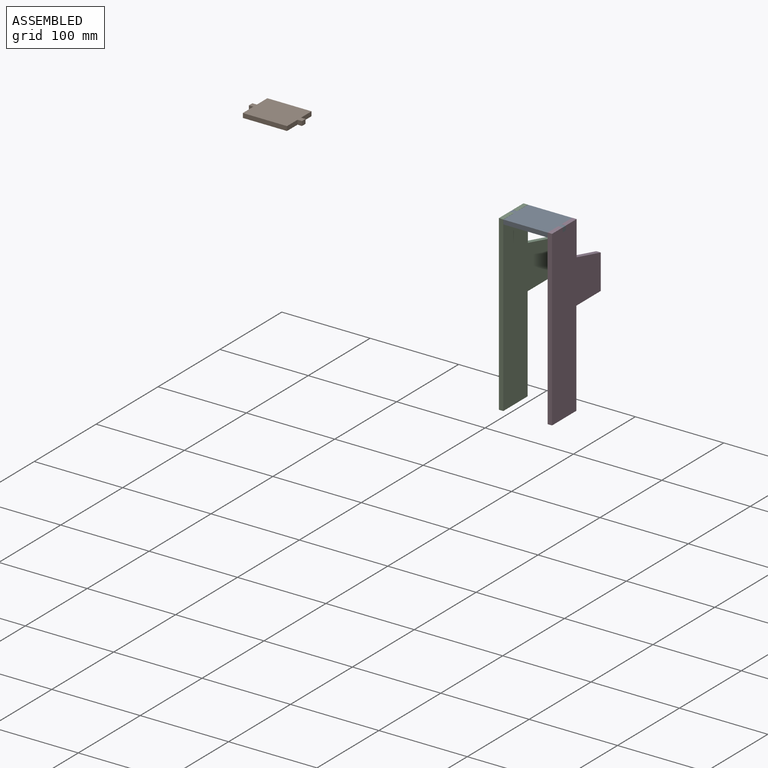
[diagram: assembled view]
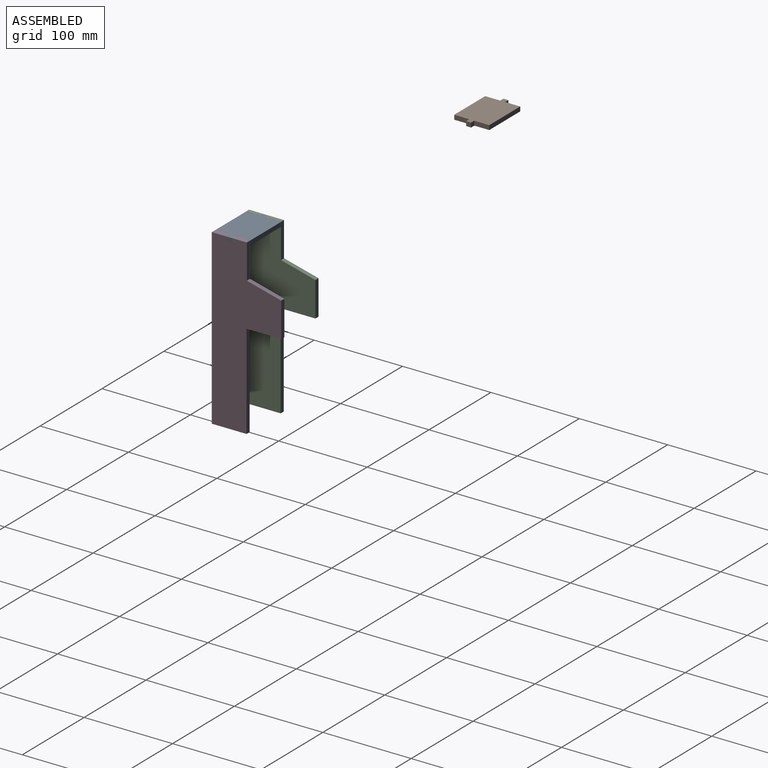
[diagram: assembled view, second angle]
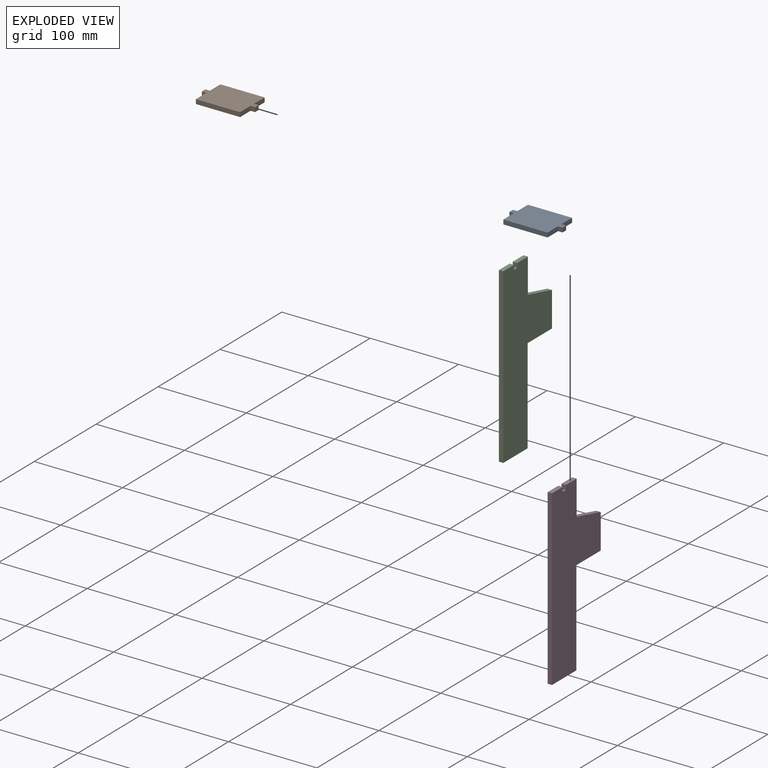
[diagram: exploded view]
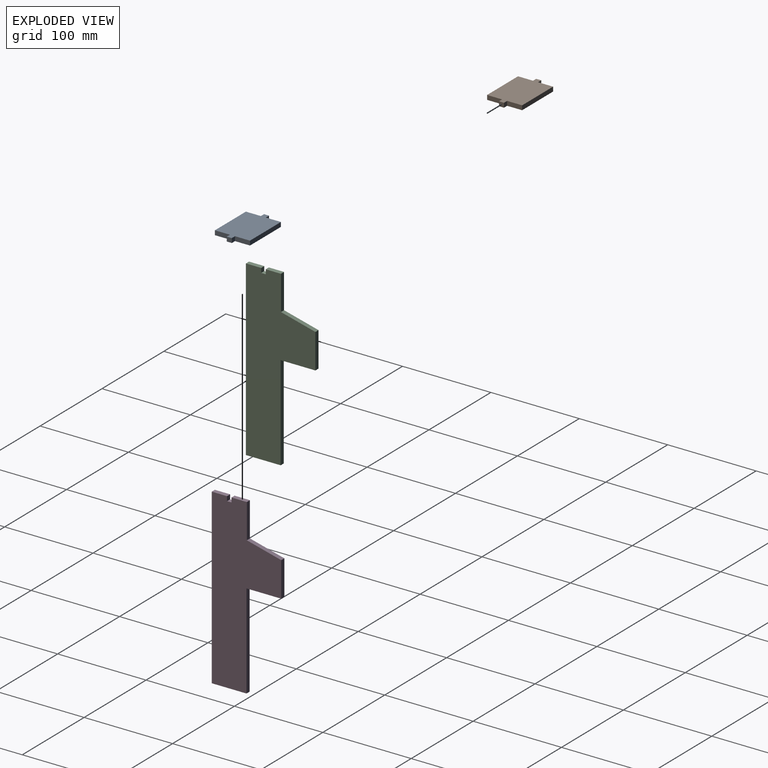
[diagram: exploded view, second angle]
ASSEMBLY  parts=4 mates=2
PART A: 14 faces, bbox 60.2x39.7x5 mm
  f0: plane 16.98x5mm, normal (1,0,0), area 84.9mm2, adj f1,f11,f12,f13
  f1: plane 5.08x5mm, normal (0,-1,0), area 25.4mm2, adj f0,f2,f12,f13
  f2: plane 5.7x5mm, normal (1,0,0), area 28.5mm2, adj f1,f3,f12,f13
  f3: plane 5.08x5mm, normal (0,1,0), area 25.4mm2, adj f2,f4,f12,f13
  f4: plane 16.98x5mm, normal (1,0,0), area 84.9mm2, adj f3,f5,f12,f13
  f5: plane 50x5mm, normal (0,1,0), area 250mm2, adj f4,f6,f12,f13
  f6: plane 16.98x5mm, normal (-1,0,0), area 84.9mm2, adj f5,f7,f12,f13
  f7: plane 5.08x5mm, normal (0,1,0), area 25.4mm2, adj f6,f8,f12,f13
  f8: plane 5.7x5mm, normal (-1,0,0), area 28.5mm2, adj f7,f9,f12,f13
  f9: plane 5.08x5mm, normal (0,-1,0), area 25.4mm2, adj f8,f10,f12,f13
  f10: plane 16.98x5mm, normal (-1,0,0), area 84.9mm2, adj f9,f11,f12,f13
  f11: plane 50x5mm, normal (0,-1,0), area 250mm2, adj f0,f10,f12,f13
  f12: plane 60.16x39.65mm, normal (0,0,1), area 2040.5mm2, adj f0,f1,f2,f3,f4,f5,f6,f7
  f13: plane 60.16x39.65mm, normal (0,0,-1), area 2040.5mm2, adj f0,f1,f2,f3,f4,f5,f6,f7
PART B: same geometry as A
PART C: 14 faces, bbox 195.9x78.6x5 mm
  f0: plane 5.08x5mm, normal (0,1,0), area 25.4mm2, adj f1,f11,f12,f13
  f1: plane 17.29x5mm, normal (-1,0,0), area 86.4mm2, adj f0,f2,f12,f13
  f2: plane 195.9x5mm, normal (0,-1,0), area 979.5mm2, adj f1,f3,f12,f13
  f3: plane 39.31x5mm, normal (1,0,0), area 196.5mm2, adj f2,f4,f12,f13
  f4: plane 107.48x5mm, normal (0,1,0), area 537.4mm2, adj f3,f5,f12,f13
  f5: plane 39.31x5mm, normal (1,0,0), area 196.5mm2, adj f4,f6,f12,f13
  f6: plane 39.38x5mm, normal (0,1,0), area 196.9mm2, adj f5,f7,f12,f13
  f7: plane 38.96x9.95mm, normal (-0.97,0.25,0), area 201.1mm2, adj f6,f8,f12,f13
  f8: plane 39.1x5mm, normal (0,1,0), area 195.5mm2, adj f7,f9,f12,f13
  f9: plane 17.29x5mm, normal (-1,0,0), area 86.4mm2, adj f8,f10,f12,f13
  f10: plane 5.08x5mm, normal (0,-1,0), area 25.4mm2, adj f9,f11,f12,f13
  f11: plane 5.08x5mm, normal (-1,0,0), area 25.4mm2, adj f0,f10,f12,f13
  f12: plane 195.9x78.61mm, normal (0,0,1), area 9432.7mm2, adj f0,f1,f2,f3,f4,f5,f6,f7
  f13: plane 195.9x78.61mm, normal (0,0,-1), area 9432.7mm2, adj f0,f1,f2,f3,f4,f5,f6,f7
PART D: same geometry as C
PLACE A t=(397.6,-26.91,5.42)mm
PLACE B t=(72.61,16.24,10.92)mm
PLACE C rot(axis=(0,1,0),90deg) t=(322.29,58.55,174.83)mm
PLACE D rot(axis=(0,1,0),90deg) t=(377.45,58.55,174.83)mm
MATE fastened A.f13 <-> D.f11  axis (0,0,-1) through (382.45,-18.05,5.42)mm
MATE fastened C.f11 <-> A.f13  axis (0,0,1) through (322.29,-18.05,5.42)mm
